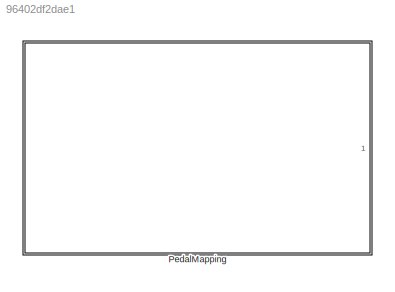
MODEL slx_96402df2dae1
KIND model
CONFIG AbsTol = auto
CONFIG FixedStep = auto
CONFIG MaxStep = auto
CONFIG MinStep = auto
CONFIG RelTol = 1e-3
CONFIG SampleTimeConstraint = Unconstrained
CONFIG Solver = ode45
CONFIG SolverMode = Auto
CONFIG SolverName = ode45
CONFIG StartTime = 0.0
CONFIG StopTime = 10.0
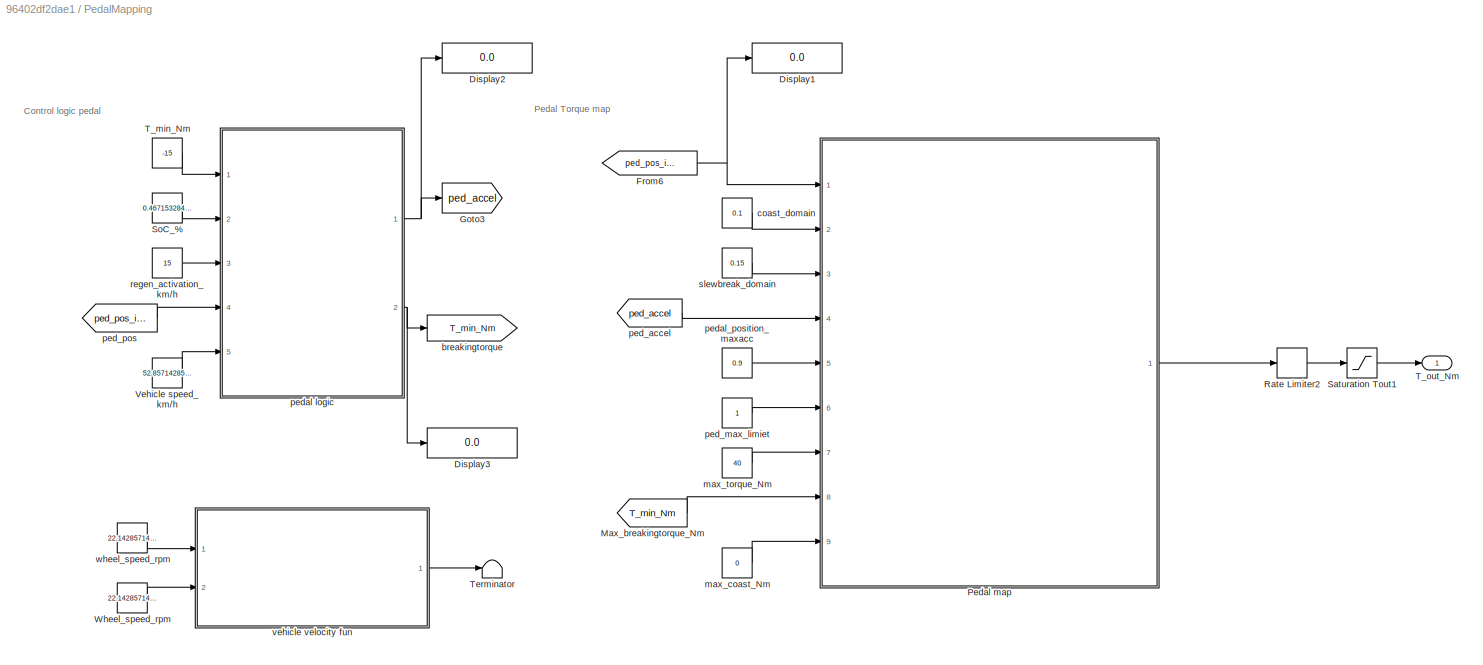
BLOCK [SubSystem] PedalMapping
  Ports = [0, 1]
  RequestExecContextInheritance = off
  Variant = off
BLOCK [Display] PedalMapping/Display1
  Decimation = 1
  Ports = [1]
BLOCK [Display] PedalMapping/Display2
  Decimation = 1
  Ports = [1]
BLOCK [Display] PedalMapping/Display3
  Decimation = 1
  Ports = [1]
BLOCK [From] PedalMapping/From6
  GotoTag = ped_pos_idle
BLOCK [Goto] PedalMapping/Goto3
  GotoTag = ped_accel
BLOCK [From] PedalMapping/Max_breakingtorque_Nm
  GotoTag = T_min_Nm
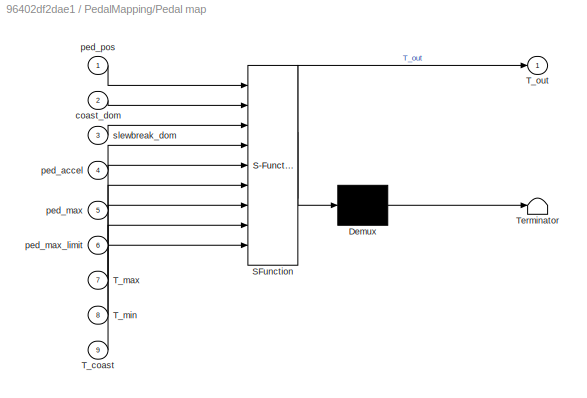
BLOCK [SubSystem] PedalMapping/Pedal map
  ErrorFcn = Stateflow.Translate.translate
  PermitHierarchicalResolution = ParametersOnly
  Ports = [9, 1]
  RequestExecContextInheritance = off
  SFBlockType = MATLAB Function
  TreatAsAtomicUnit = on
  Variant = off
BLOCK [Demux] PedalMapping/Pedal map/ Demux 
  Outputs = 1
  Ports = [1, 1]
BLOCK [S-Function] PedalMapping/Pedal map/ SFunction 
  EnableBusSupport = on
  FunctionName = sf_sfun
  PortCounts = [9 2]
  Ports = [9, 2]
  SFunctionDeploymentMode = off
  Tag = Stateflow S-Function RegenModelV2a 1
BLOCK [Terminator] PedalMapping/Pedal map/ Terminator 
BLOCK [Inport] PedalMapping/Pedal map/T_coast
  IconDisplay = Port number
  Port = 9
BLOCK [Inport] PedalMapping/Pedal map/T_max
  IconDisplay = Port number
  Port = 7
BLOCK [Inport] PedalMapping/Pedal map/T_min
  IconDisplay = Port number
  Port = 8
BLOCK [Outport] PedalMapping/Pedal map/T_out
  IconDisplay = Port number
BLOCK [Inport] PedalMapping/Pedal map/coast_dom
  IconDisplay = Port number
  Port = 2
BLOCK [Inport] PedalMapping/Pedal map/ped_accel
  IconDisplay = Port number
  Port = 4
BLOCK [Inport] PedalMapping/Pedal map/ped_max
  IconDisplay = Port number
  Port = 5
BLOCK [Inport] PedalMapping/Pedal map/ped_max_limit
  IconDisplay = Port number
  Port = 6
BLOCK [Inport] PedalMapping/Pedal map/ped_pos
  IconDisplay = Port number
BLOCK [Inport] PedalMapping/Pedal map/slewbreak_dom
  IconDisplay = Port number
  Port = 3
BLOCK [RateLimiter] PedalMapping/Rate Limiter2
  FallingSlewLimit = -20
  RisingSlewLimit = 20
  SampleTimeMode = inherited
BLOCK [Saturate] PedalMapping/Saturation Tout1
  InputPortMap = u0
  LowerLimit = -40
  Ports = [1, 1]
  UpperLimit = 40
BLOCK [Constant] PedalMapping/SoC_%
  Value = 0.4671532846715328
BLOCK [Constant] PedalMapping/T_min_Nm
  Value = -15
BLOCK [Outport] PedalMapping/T_out_Nm
  IconDisplay = Port number
BLOCK [Terminator] PedalMapping/Terminator
BLOCK [Constant] PedalMapping/Vehicle speed_km//h
  Value = 52.85714285714285
BLOCK [Constant] PedalMapping/Wheel_speed_rpm
  Value = 22.14285714285714
BLOCK [Goto] PedalMapping/breakingtorque
  GotoTag = T_min_Nm
BLOCK [Constant] PedalMapping/coast_domain
  Value = 0.1
BLOCK [Constant] PedalMapping/max_coast_Nm
  Value = 0
BLOCK [Constant] PedalMapping/max_torque_Nm
  Value = 40
BLOCK [From] PedalMapping/ped_accel
  GotoTag = ped_accel
BLOCK [Constant] PedalMapping/ped_max_limiet
BLOCK [From] PedalMapping/ped_pos
  GotoTag = ped_pos_idle
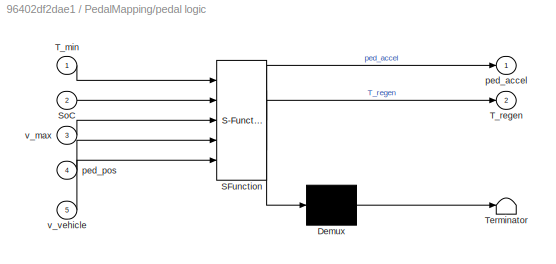
BLOCK [SubSystem] PedalMapping/pedal logic
  ErrorFcn = Stateflow.Translate.translate
  PermitHierarchicalResolution = ParametersOnly
  Ports = [5, 2]
  RequestExecContextInheritance = off
  SFBlockType = Chart
  TreatAsAtomicUnit = on
  Variant = off
BLOCK [Demux] PedalMapping/pedal logic/ Demux 
  Outputs = 1
  Ports = [1, 1]
BLOCK [S-Function] PedalMapping/pedal logic/ SFunction 
  EnableBusSupport = on
  FunctionName = sf_sfun
  PortCounts = [5 3]
  Ports = [5, 3]
  SFunctionDeploymentMode = off
  Tag = Stateflow S-Function RegenModelV2a 5
BLOCK [Terminator] PedalMapping/pedal logic/ Terminator 
BLOCK [Inport] PedalMapping/pedal logic/SoC
  IconDisplay = Port number
  Port = 2
BLOCK [Inport] PedalMapping/pedal logic/T_min
  IconDisplay = Port number
BLOCK [Outport] PedalMapping/pedal logic/T_regen
  IconDisplay = Port number
  Port = 2
BLOCK [Outport] PedalMapping/pedal logic/ped_accel
  IconDisplay = Port number
BLOCK [Inport] PedalMapping/pedal logic/ped_pos
  IconDisplay = Port number
  Port = 4
BLOCK [Inport] PedalMapping/pedal logic/v_max
  IconDisplay = Port number
  Port = 3
BLOCK [Inport] PedalMapping/pedal logic/v_vehicle
  IconDisplay = Port number
  Port = 5
BLOCK [Constant] PedalMapping/pedal_position_maxacc
  Value = 0.9
BLOCK [Constant] PedalMapping/regen_activation_km//h
  Value = 15
BLOCK [Constant] PedalMapping/slewbreak_domain
  Value = 0.15
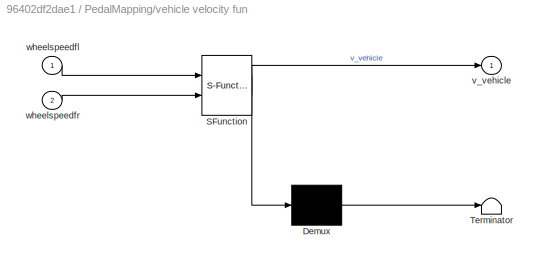
BLOCK [SubSystem] PedalMapping/vehicle velocity fun
  ErrorFcn = Stateflow.Translate.translate
  PermitHierarchicalResolution = ParametersOnly
  Ports = [2, 1]
  RequestExecContextInheritance = off
  SFBlockType = MATLAB Function
  TreatAsAtomicUnit = on
  Variant = off
BLOCK [Demux] PedalMapping/vehicle velocity fun/ Demux 
  Outputs = 1
  Ports = [1, 1]
BLOCK [S-Function] PedalMapping/vehicle velocity fun/ SFunction 
  EnableBusSupport = on
  FunctionName = sf_sfun
  PortCounts = [2 2]
  Ports = [2, 2]
  SFunctionDeploymentMode = off
  Tag = Stateflow S-Function RegenModelV2a 4
BLOCK [Terminator] PedalMapping/vehicle velocity fun/ Terminator 
BLOCK [Outport] PedalMapping/vehicle velocity fun/v_vehicle
  IconDisplay = Port number
BLOCK [Inport] PedalMapping/vehicle velocity fun/wheelspeedfl
  IconDisplay = Port number
BLOCK [Inport] PedalMapping/vehicle velocity fun/wheelspeedfr
  IconDisplay = Port number
  Port = 2
BLOCK [Constant] PedalMapping/wheel_speed_rpm
  Value = 22.14285714285714
ANNOTATION PedalMapping: Control logic pedal
ANNOTATION PedalMapping: Pedal Torque map
NET PedalMapping/From6:1 -> PedalMapping/Display1:1, PedalMapping/Pedal map:1
LINE PedalMapping/Max_breakingtorque_Nm:1 -> PedalMapping/Pedal map:8
LINE PedalMapping/Pedal map:1 -> PedalMapping/Rate Limiter2:1
LINE PedalMapping/Rate Limiter2:1 -> PedalMapping/Saturation Tout1:1
LINE PedalMapping/Saturation Tout1:1 -> PedalMapping/T_out_Nm:1
LINE PedalMapping/SoC_%:1 -> PedalMapping/pedal logic:2
LINE PedalMapping/T_min_Nm:1 -> PedalMapping/pedal logic:1
LINE PedalMapping/Vehicle speed_km//h:1 -> PedalMapping/pedal logic:5
LINE PedalMapping/Wheel_speed_rpm:1 -> PedalMapping/vehicle velocity fun:2
LINE PedalMapping/coast_domain:1 -> PedalMapping/Pedal map:2
LINE PedalMapping/max_coast_Nm:1 -> PedalMapping/Pedal map:9
LINE PedalMapping/max_torque_Nm:1 -> PedalMapping/Pedal map:7
LINE PedalMapping/ped_accel:1 -> PedalMapping/Pedal map:4
LINE PedalMapping/ped_max_limiet:1 -> PedalMapping/Pedal map:6
LINE PedalMapping/ped_pos:1 -> PedalMapping/pedal logic:4
NET PedalMapping/pedal logic:1 -> PedalMapping/Display2:1, PedalMapping/Goto3:1
NET PedalMapping/pedal logic:2 -> PedalMapping/Display3:1, PedalMapping/breakingtorque:1
LINE PedalMapping/pedal_position_maxacc:1 -> PedalMapping/Pedal map:5
LINE PedalMapping/regen_activation_km//h:1 -> PedalMapping/pedal logic:3
LINE PedalMapping/slewbreak_domain:1 -> PedalMapping/Pedal map:3
LINE PedalMapping/vehicle velocity fun:1 -> PedalMapping/Terminator:1
LINE PedalMapping/wheel_speed_rpm:1 -> PedalMapping/vehicle velocity fun:1
note: NET lines group one-source signal fan-out (src -> all destinations, sorted); 1:1 wires keep LINE
CHART PedalMapping/Pedal map states=1 transitions=1
  STATE_LABEL 'eML_blk_kernel()'
  STATE_LABEL 'SCRIPT:\nfunction T_out = Pedalmap_eq(ped_pos,coast_dom,slewbreak_dom,ped_accel,ped_max,ped_max_limit,T_max,T_min,T_coast)\n%%Accelerator pedal mapping:\n\nped_regen=ped_accel-coast_dom; %pedal postion - start regen - variable in function of velocity\nped_zero=ped_regen-slewbreak_dom; %pedal postion - start max regen - variable in function of velocity\n\nslewrate_acc=(T_max-T_coast)/(ped_max-ped_accel); ...<+503ch>'
CHART PedalMapping/vehicle velocity fun states=1 transitions=1
  STATE_LABEL 'eML_blk_kernel()'
  STATE_LABEL 'SCRIPT:\nfunction v_vehicle = vehicle_velocity(wheelspeedfl,wheelspeedfr)\n%% vehicle speed estimation\nr=0.0254;\n\nv_vehicle= (wheelspeedfl+wheelspeedfr)/2 *r;\n'
CHART PedalMapping/pedal logic states=4 transitions=6
  STATE_LABEL 'Driving'
  STATE_LABEL 'Disable_regen %SoC is to high.\nentry:\nped_accel=0.45;\nT_regen=0;'
  STATE_LABEL 'Activate_regen\nentry:\nped_accel=0.45;\nT0= -5; %Regentorque at v_max [Nm]\nduring:\n% velocity dependant braking torque\nif v_vehicle<15\n    T_regen=T_min/15\nelseif v_vehicle<50\n    T_regen=T_min\nelse\n    T_regen=(T_min-T0)/(50-100)*(v_vehicle-100)+T0\nend\n'
  STATE_LABEL '[SoC<0.95]'
  STATE_LABEL '[SoC>0.95]'
  STATE_LABEL 'Disable_regen %SoC is to high.\nentry:\nped_accel=0.45;\nT_regen=0;'
  STATE_LABEL 'Activate_regen\nentry:\nped_accel=0.45;\nT0= -5; %Regentorque at v_max [Nm]\nduring:\n% velocity dependant braking torque\nif v_vehicle<15\n    T_regen=T_min/15\nelseif v_vehicle<50\n    T_regen=T_min\nelse\n    T_regen=(T_min-T0)/(50-100)*(v_vehicle-100)+T0\nend\n'
  STATE_LABEL 'Standstill\nentry:\nT_regen=0;\nped_accel=0.1; %\nduring:\n%velocity dependent coasting until v_max\nif ped_pos>0.1\n    ped_accel=min(ped_pos* (v_vehicle/v_max),0.45); %Offset of 0.1\nend\nexit:\nped_accel=0.45;\n'
